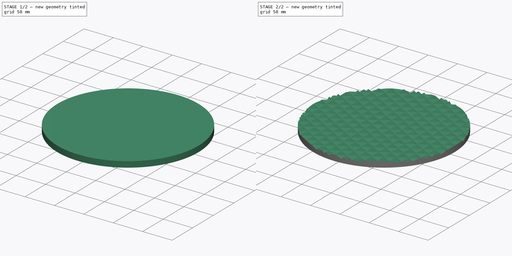
[diagram: build sequence overview — one tinted view per stage of 2, left to right]
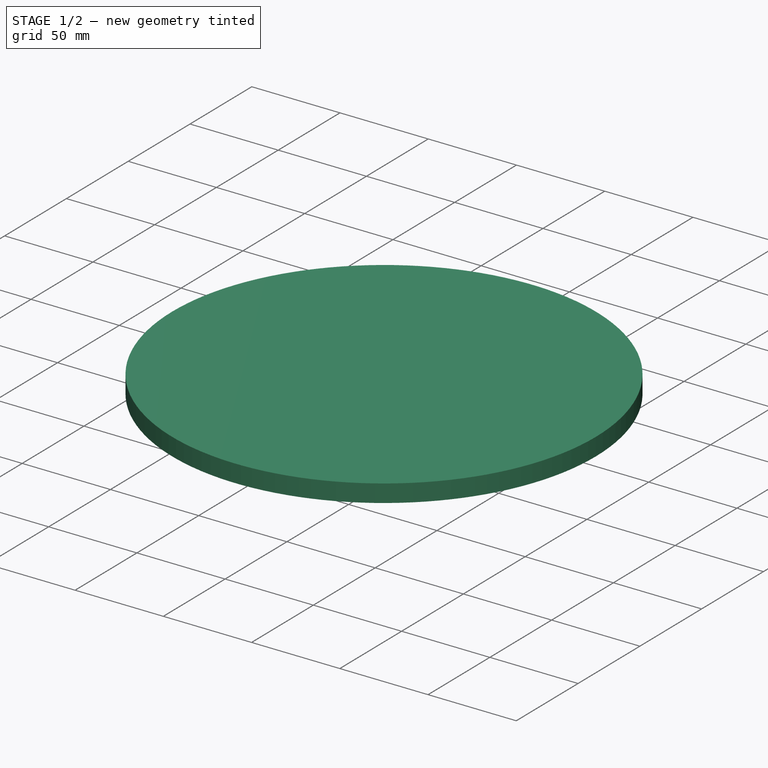
[diagram: stage 1 of 2 — iso view after this stage's code; geometry added in this stage tinted green]
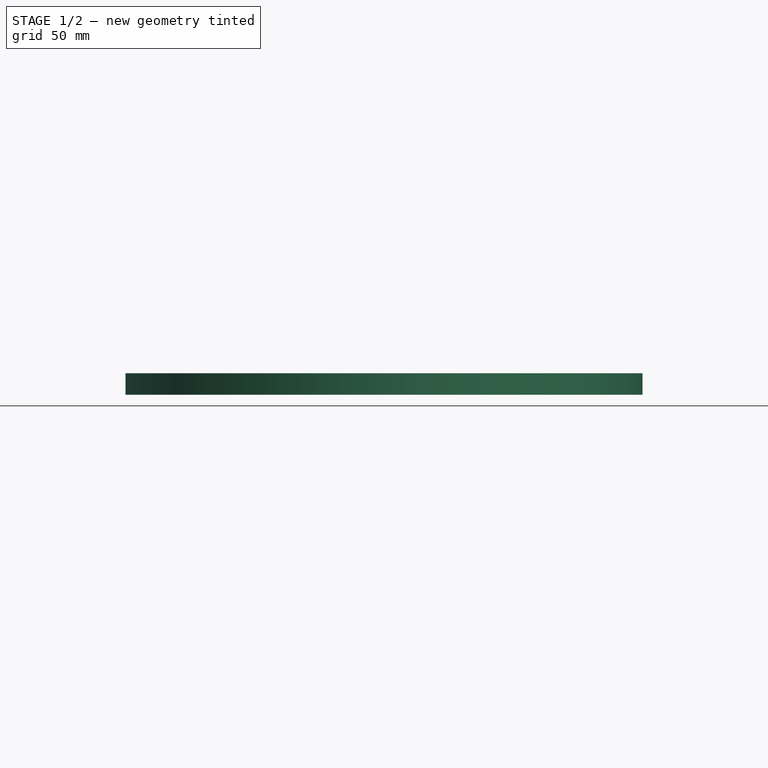
[diagram: stage 1 of 2 — front view after this stage's code; geometry added in this stage tinted green]
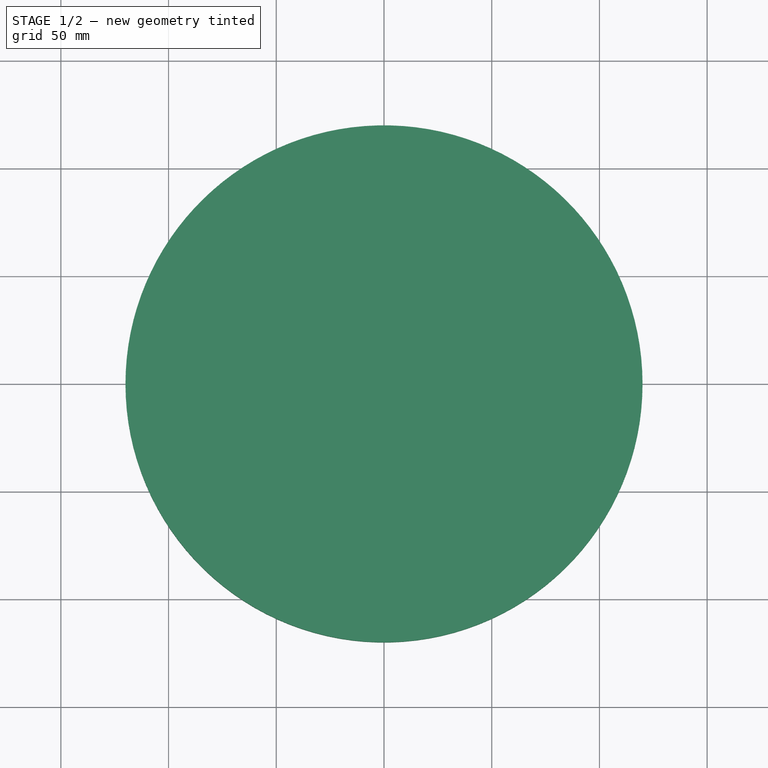
[diagram: stage 1 of 2 — top view after this stage's code; geometry added in this stage tinted green]
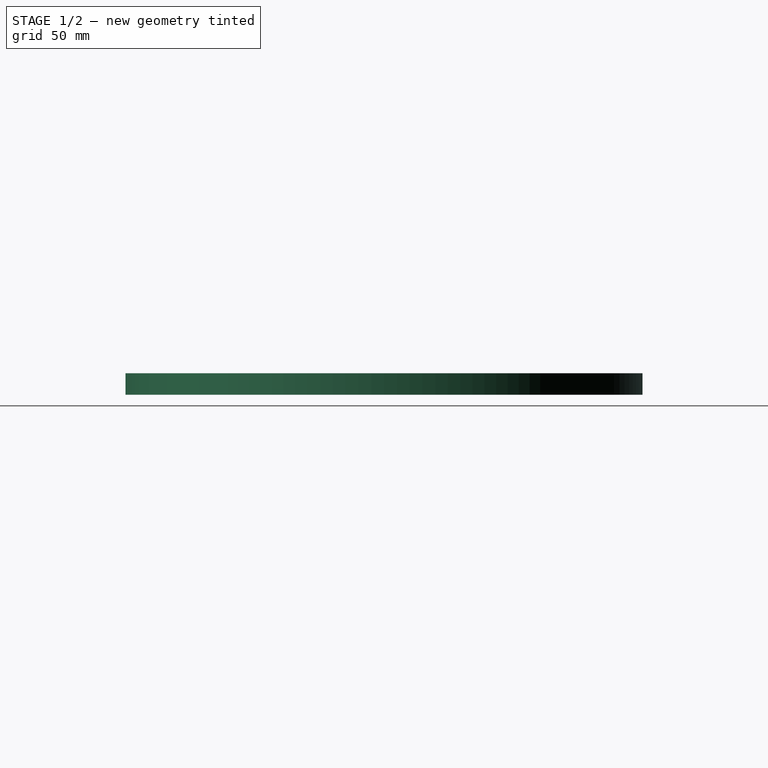
[diagram: stage 1 of 2 — right view after this stage's code; geometry added in this stage tinted green]
FCSTD DOCUMENT  (FreeCAD 1.0R39285 (Git))
Label: Catadioptre
License: All rights reserved
LicenseURL: http://en.wikipedia.org/wiki/All_rights_reserved
objects: PartDesign::Mirrored×3, PartDesign::Plane×2, PartDesign::LinearPattern×2, PartDesign::AdditiveCylinder×1, Sketcher::SketchObject×1, PartDesign::Pocket×1, PartDesign::Line×1, PartDesign::MultiTransform×1, PartDesign::Body×1
note: 24 computed .brp shape members not serialized (recipe doc carries the construction recipe); baked Part::Feature solids carry a one-line shape summary decoded from their .brp

FEATURE [PartDesign::AdditiveCylinder] Cylinder
  Angle = 360
  AttacherType = Attacher::AttachEngine3D
  FirstAngle = 0
  Height = 10
  Radius = 120
  SecondAngle = 0
  Suppressed = false
FEATURE [Sketcher::SketchObject] Sketch
  ArcFitTolerance = 1e-06
  AttachmentOffset = pos=(-130,0,0) rot=(0,0,1;0rad)
  AttachmentSupport = -> [Cylinder]
  FullyConstrained = true
  MakeInternals = false
  MapMode = 5
  Placement = pos=(-130,0,10) rot=(0,0,1;0rad)
  sketch-geometry (4):
    g0: LineSegment StartX=10 StartY=0 StartZ=0 EndX=-5 EndY=8.66025 EndZ=0
    g1: LineSegment StartX=-5 StartY=8.66025 StartZ=0 EndX=-5 EndY=-8.66025 EndZ=0
    g2: LineSegment StartX=-5 StartY=-8.66025 StartZ=0 EndX=10 EndY=0 EndZ=0
    g3: Circle [constr] CenterX=0 CenterY=0 CenterZ=0 NormalX=0 NormalY=0 NormalZ=1 AngleXU=0 Radius=10
  constraints (11):
    c: Coincident(g0,g1)
    c: Coincident(g1,g2)
    c: Coincident(g2,g0)
    c: Equal(g0,g1)
    c: Equal(g0,g2)
    c: PointOnObject(g0,g3)
    c: PointOnObject(g1,g3)
    c: PointOnObject(g2,g3)
    c: Radius(g3) = 10
    c: Coincident(g3,g-1)
    c: PointOnObject(g2,g-1)
FEATURE [PartDesign::Pocket] Pocket
  BaseFeature = -> Cylinder
  Direction = (0,0,-1)
  Length = 4.99
  Length2 = 5
  Profile = -> Sketch
  ReferenceAxis = -> Sketch [N_Axis]
  Suppressed = false
  TaperAngle = -45
  Type = 0
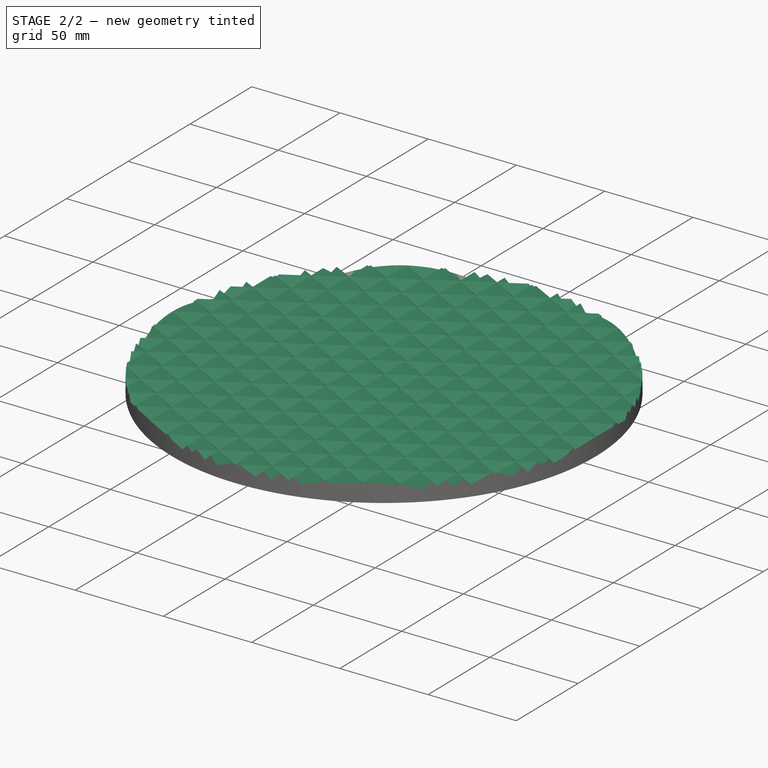
[diagram: stage 2 of 2 — iso view after this stage's code; geometry added in this stage tinted green]
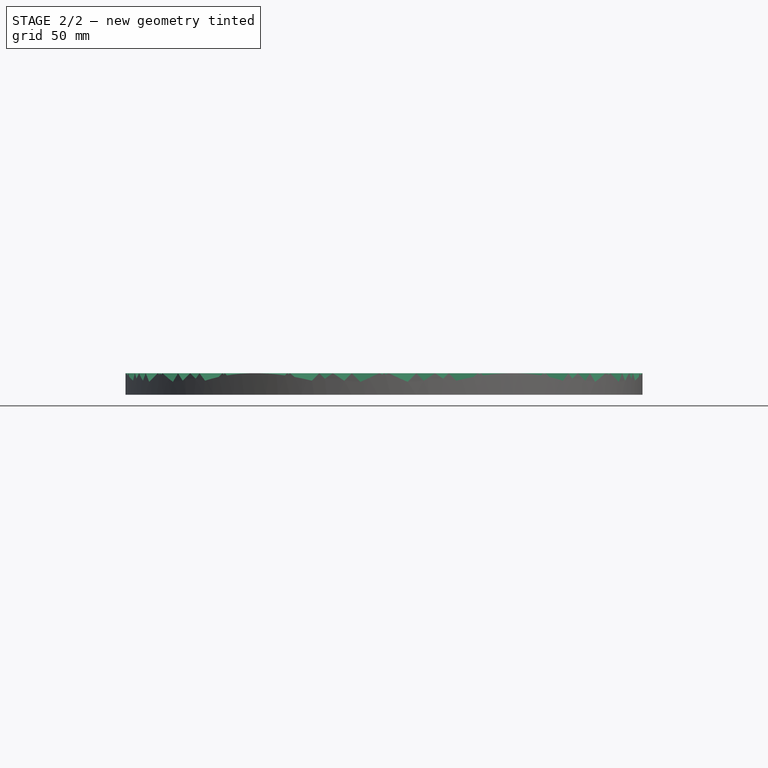
[diagram: stage 2 of 2 — front view after this stage's code; geometry added in this stage tinted green]
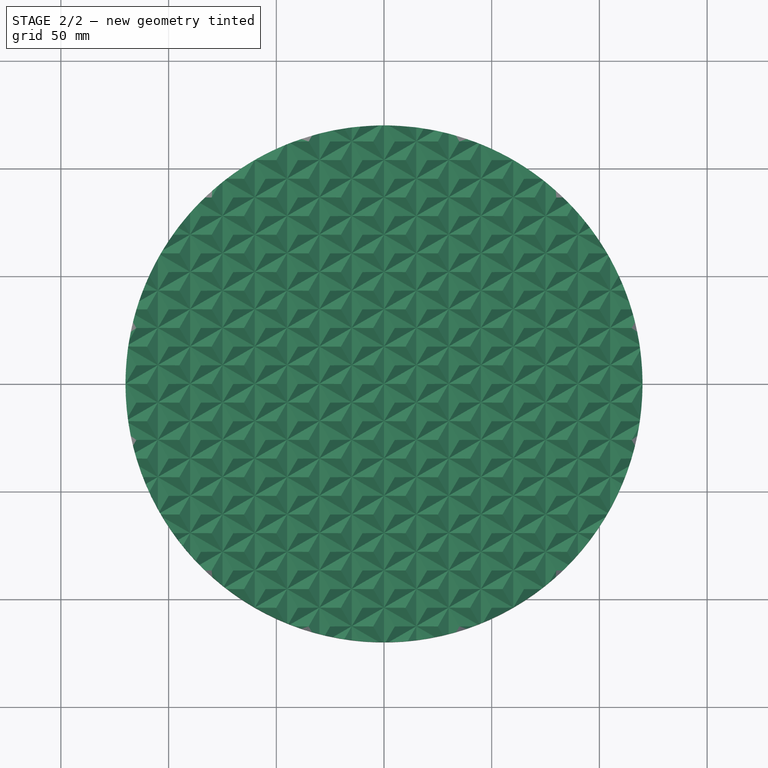
[diagram: stage 2 of 2 — top view after this stage's code; geometry added in this stage tinted green]
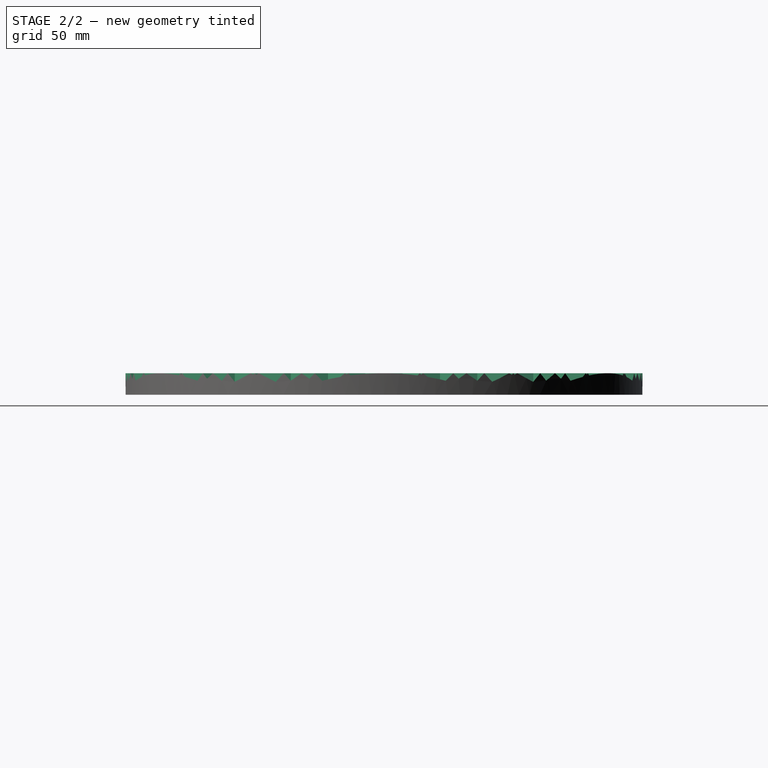
[diagram: stage 2 of 2 — right view after this stage's code; geometry added in this stage tinted green]
FEATURE [PartDesign::Plane] DatumPlane
  AttachmentSupport = -> [Sketch]
  Length = 261.909
  MapMode = 14
  Placement = pos=(-135,0,10) rot=(0.57735,-0.57735,-0.57735;2.0944rad)
  ResizeMode = 0
  Width = 71.9089
FEATURE [PartDesign::Mirrored] Mirrored
  MirrorPlane = -> DatumPlane
  Suppressed = false
  TransformMode = 0
FEATURE [PartDesign::LinearPattern] LinearPattern
  Direction = -> Sketch [H_Axis]
  Length = 240
  Mode = 1
  Occurrences = 9
  Offset = 30
  Suppressed = false
  TransformMode = 0
FEATURE [PartDesign::Line] DatumLine
  AttacherType = Attacher::AttachEngineLine
  AttachmentOffset = pos=(0,0,-150) rot=(0,1,0;0.523599rad)
  AttachmentSupport = -> [X_Axis]
  Length = 20
  MapMode = 29
  Placement = pos=(-150,0,0) rot=(0.377964,0.654654,0.654654;2.41886rad)
  ResizeMode = 0
FEATURE [PartDesign::LinearPattern] LinearPattern001
  Direction = -> DatumLine
  Length = 242.487
  Mode = 1
  Occurrences = 15
  Offset = 17.3205
  Suppressed = false
  TransformMode = 0
  expr: Offset = 2 * cos(30) * 10 mm
FEATURE [PartDesign::Mirrored] Mirrored001
  MirrorPlane = -> XZ_Plane
  Suppressed = false
  TransformMode = 0
FEATURE [PartDesign::Plane] DatumPlane001
  AttachmentSupport = -> [DatumLine,Sketch]
  Length = 353.453
  MapMode = 13
  Placement = pos=(-144.711,3.05342,3.33333) rot=(0.935113,0.250563,0.250563;1.63783rad)
  ResizeMode = 0
  Width = 75.6065
FEATURE [PartDesign::Mirrored] Mirrored002
  MirrorPlane = -> DatumPlane001
  Suppressed = false
  TransformMode = 0
FEATURE [PartDesign::MultiTransform] MultiTransform
  BaseFeature = -> Pocket
  Originals = -> [Pocket]
  Suppressed = false
  TransformMode = 0
  Transformations = -> [Mirrored,LinearPattern,LinearPattern001,Mirrored002,Mirrored001]
FEATURE [PartDesign::Body] Body
  AllowCompound = false
  Group = -> [Cylinder,Sketch,Pocket,DatumPlane,DatumLine,DatumPlane001,MultiTransform,Mirrored,LinearPattern,LinearPattern001,Mirrored001,Mirrored002]
  Origin = -> Origin
  Tip = -> MultiTransform
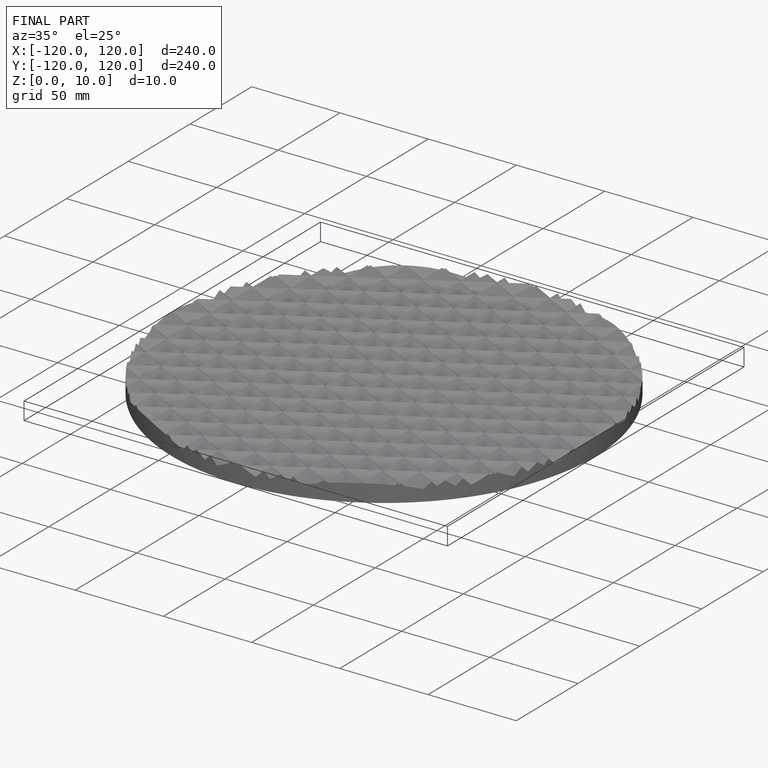
[diagram: finished part — iso view with bounding-box wireframe]
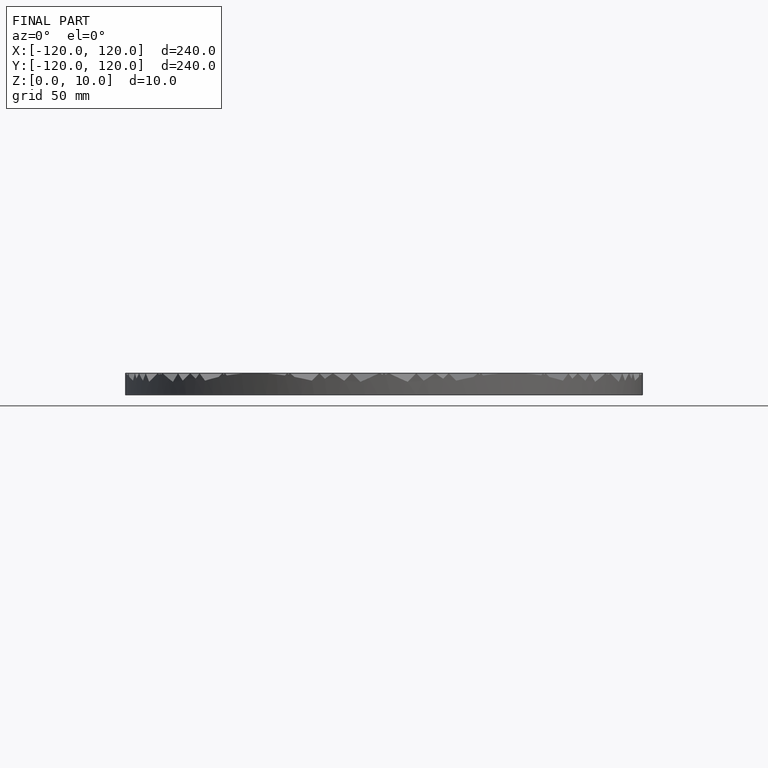
[diagram: finished part — front view with bounding-box wireframe]
